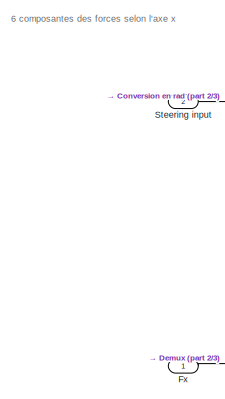
[diagram: root canvas - part 1/3, top left region]
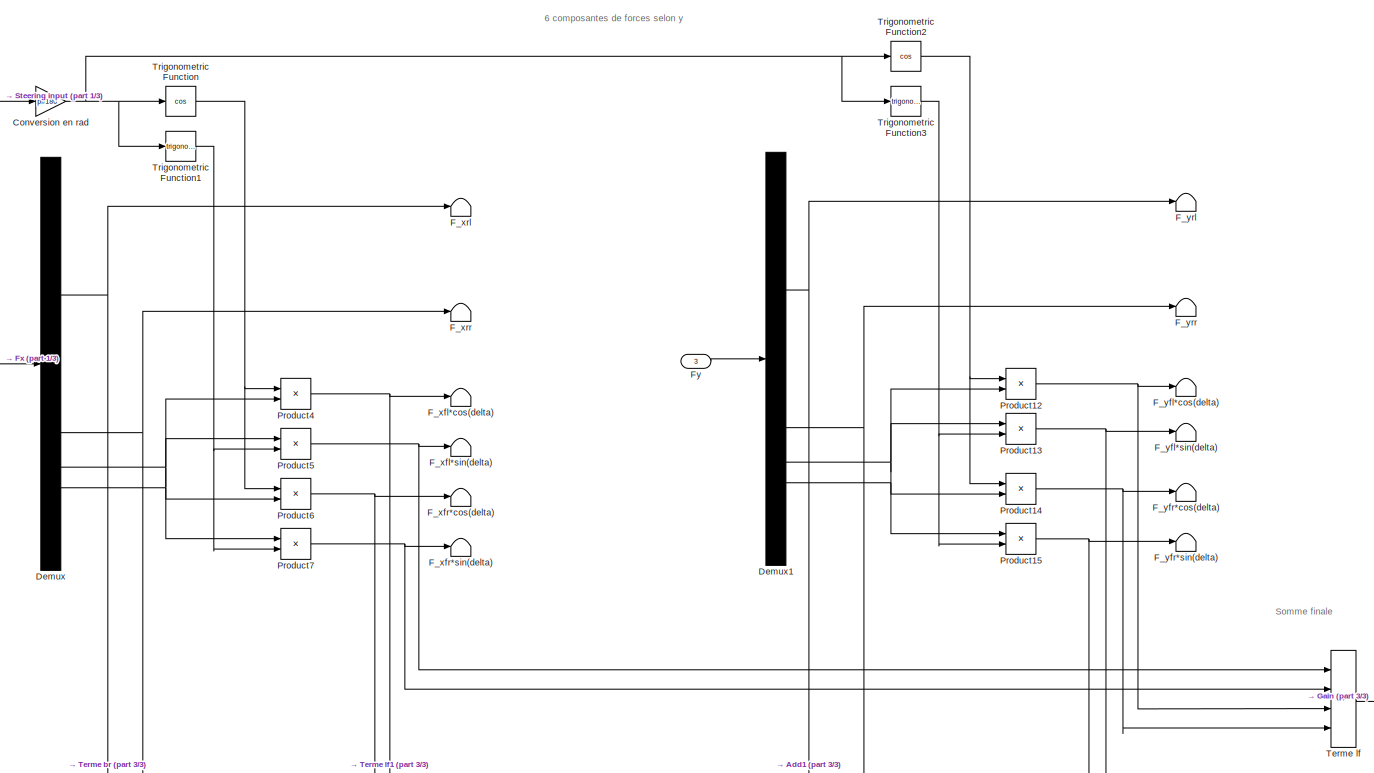
[diagram: root canvas - part 2/3, central region]
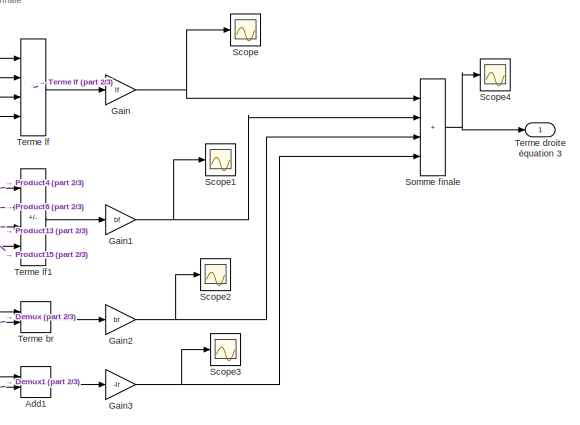
[diagram: root canvas - part 3/3, bottom right region]
MODEL slx_458dd4aa9a3c
KIND model
CONFIG AbsTol = auto
CONFIG EnableMultiTasking = off
CONFIG FixedStep = Ts
CONFIG MaxStep = auto
CONFIG MinStep = auto
CONFIG RelTol = 1e-3
CONFIG SampleTimeConstraint = Unconstrained
CONFIG SolverName = FixedStepAuto
CONFIG StartTime = 0.0
CONFIG StopTime = 10.0
BLOCK [Sum] Add1
  IconShape = rectangular
BLOCK [Gain] Conversion en rad
  Gain = pi/180
BLOCK [Demux] Demux
BLOCK [Demux] Demux1
BLOCK [Terminator] F_xfl*cos(delta)
BLOCK [Terminator] F_xfl*sin(delta)
BLOCK [Terminator] F_xfr*cos(delta)
BLOCK [Terminator] F_xfr*sin(delta)
BLOCK [Terminator] F_xrl
BLOCK [Terminator] F_xrr
BLOCK [Terminator] F_yfl*cos(delta)
BLOCK [Terminator] F_yfl*sin(delta)
BLOCK [Terminator] F_yfr*cos(delta)
BLOCK [Terminator] F_yfr*sin(delta)
BLOCK [Terminator] F_yrl
BLOCK [Terminator] F_yrr
BLOCK [Inport] Fx
BLOCK [Inport] Fy
  Port = 3
BLOCK [Gain] Gain
  Gain = lf
BLOCK [Gain] Gain1
  Gain = bf
BLOCK [Gain] Gain2
  Gain = br
BLOCK [Gain] Gain3
  Gain = -lr
BLOCK [Product] Product12
BLOCK [Product] Product13
BLOCK [Product] Product14
BLOCK [Product] Product15
BLOCK [Product] Product4
BLOCK [Product] Product5
BLOCK [Product] Product6
BLOCK [Product] Product7
BLOCK [Scope] Scope
  Floating = off
  NumInputPorts = 1
  ScopeSpecificationString = Simulink.scopes.TimeScopeBlockCfg('CurrentConfiguration', extmgr.ConfigurationSet(extmgr.Configuration('Core','General UI',true),extmgr.Configuration('Core','Source UI',true),extmgr.Configuration('Sources','WiredSimulink',true),extmgr.Configuration('Visuals','Time Domain',true,'SerializedDisplays',{struct('MinYLimReal','-2898.27577','MaxYLimReal','372.42973','YLabelReal','','MinYLimMag','  0.00000...<+1433ch>
BLOCK [Scope] Scope1
  Floating = off
  NumInputPorts = 1
  ScopeSpecificationString = Simulink.scopes.TimeScopeBlockCfg('CurrentConfiguration', extmgr.ConfigurationSet(extmgr.Configuration('Core','General UI',true),extmgr.Configuration('Core','Source UI',true),extmgr.Configuration('Sources','WiredSimulink',true,'DataLoggingVariableName','ScopeData1'),extmgr.Configuration('Visuals','Time Domain',true,'SerializedDisplays',{struct('MinYLimReal','-1.00000','MaxYLimReal','1.00000','YLab...<+1453ch>
BLOCK [Scope] Scope2
  Floating = off
  NumInputPorts = 1
  ScopeSpecificationString = Simulink.scopes.TimeScopeBlockCfg('CurrentConfiguration', extmgr.ConfigurationSet(extmgr.Configuration('Core','General UI',true),extmgr.Configuration('Core','Source UI',true),extmgr.Configuration('Sources','WiredSimulink',true,'DataLoggingVariableName','ScopeData2'),extmgr.Configuration('Visuals','Time Domain',true,'SerializedDisplays',{struct('MinYLimReal','-1.00000','MaxYLimReal','1.00000','YLab...<+1453ch>
BLOCK [Scope] Scope3
  Floating = off
  NumInputPorts = 1
  ScopeSpecificationString = Simulink.scopes.TimeScopeBlockCfg('CurrentConfiguration', extmgr.ConfigurationSet(extmgr.Configuration('Core','General UI',true),extmgr.Configuration('Core','Source UI',true),extmgr.Configuration('Sources','WiredSimulink',true,'DataLoggingVariableName','ScopeData3'),extmgr.Configuration('Visuals','Time Domain',true,'SerializedDisplays',{struct('MinYLimReal','-326.08816','MaxYLimReal','2891.75202',...<+1471ch>
BLOCK [Scope] Scope4
  Floating = off
  NumInputPorts = 1
  ScopeSpecificationString = Simulink.scopes.TimeScopeBlockCfg('CurrentConfiguration', extmgr.ConfigurationSet(extmgr.Configuration('Core','General UI',true),extmgr.Configuration('Core','Source UI',true),extmgr.Configuration('Sources','WiredSimulink',true,'DataLoggingVariableName','ScopeData4'),extmgr.Configuration('Visuals','Time Domain',true),extmgr.Configuration('Tools','Plot Navigation',true),extmgr.Configuration('Tools',...<+40ch>
BLOCK [Sum] Somme finale
  IconShape = rectangular
  Inputs = ++++
BLOCK [Inport] Steering input
  Port = 2
BLOCK [Sum] Terme br
  IconShape = rectangular
  Inputs = +-
BLOCK [Outport] Terme droite équation 3
BLOCK [Sum] Terme lf
  IconShape = rectangular
  Inputs = ++++
BLOCK [Sum] Terme lf1
  IconShape = rectangular
  Inputs = -++-
BLOCK [Trigonometry] Trigonometric Function
  Operator = cos
BLOCK [Trigonometry] Trigonometric Function1
BLOCK [Trigonometry] Trigonometric Function2
  Operator = cos
BLOCK [Trigonometry] Trigonometric Function3
ANNOTATION (root): 6 composantes de forces selon y
ANNOTATION (root): 6 composantes des forces selon l'axe x
ANNOTATION (root): Somme finale
LINE Add1:1 -> Gain3:1
NET Conversion en rad:1 -> Trigonometric Function1:1, Trigonometric Function2:1, Trigonometric Function3:1, Trigonometric Function:1
NET Demux1:1 -> Add1:2, F_yrl:1
NET Demux1:2 -> Add1:1, F_yrr:1
NET Demux1:3 -> Product12:2, Product13:1
NET Demux1:4 -> Product14:2, Product15:1
NET Demux:1 -> F_xrl:1, Terme br:2
NET Demux:2 -> F_xrr:1, Terme br:1
NET Demux:3 -> Product4:2, Product5:1
NET Demux:4 -> Product6:2, Product7:1
LINE Fx:1 -> Demux:1
LINE Fy:1 -> Demux1:1
NET Gain1:1 -> Scope1:1, Somme finale:2
NET Gain2:1 -> Scope2:1, Somme finale:3
NET Gain3:1 -> Scope3:1, Somme finale:4
NET Gain:1 -> Scope:1, Somme finale:1
NET Product12:1 -> F_yfl*cos(delta):1, Terme lf:3
NET Product13:1 -> F_yfl*sin(delta):1, Terme lf1:3
NET Product14:1 -> F_yfr*cos(delta):1, Terme lf:4
NET Product15:1 -> F_yfr*sin(delta):1, Terme lf1:4
NET Product4:1 -> F_xfl*cos(delta):1, Terme lf1:1
NET Product5:1 -> F_xfl*sin(delta):1, Terme lf:1
NET Product6:1 -> F_xfr*cos(delta):1, Terme lf1:2
NET Product7:1 -> F_xfr*sin(delta):1, Terme lf:2
NET Somme finale:1 -> Scope4:1, Terme droite équation 3:1
LINE Steering input:1 -> Conversion en rad:1
LINE Terme br:1 -> Gain2:1
LINE Terme lf1:1 -> Gain1:1
LINE Terme lf:1 -> Gain:1
NET Trigonometric Function1:1 -> Product5:2, Product7:2
NET Trigonometric Function2:1 -> Product12:1, Product14:1
NET Trigonometric Function3:1 -> Product13:2, Product15:2
NET Trigonometric Function:1 -> Product4:1, Product6:1
note: NET lines group one-source signal fan-out (src -> all destinations, sorted); 1:1 wires keep LINE
